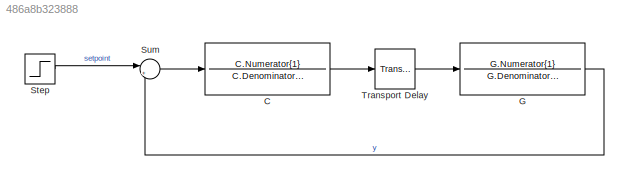
MODEL slx_486a8b323888
KIND model
CONFIG AbsTol = auto
CONFIG EnableMultiTasking = off
CONFIG FixedStep = auto
CONFIG MaxStep = 0.01
CONFIG MinStep = auto
CONFIG RelTol = 1e-3
CONFIG SampleTimeConstraint = Unconstrained
CONFIG SolverName = VariableStepAuto
CONFIG StartTime = 0.0
CONFIG StopTime = 10.0
BLOCK [TransferFcn] C
  Denominator = C.Denominator{1}
  Numerator = C.Numerator{1}
BLOCK [TransferFcn] G
  Denominator = G.Denominator{1}
  Numerator = G.Numerator{1}
BLOCK [Step] Step
  SampleTime = 0
BLOCK [Sum] Sum
  Inputs = |+-
BLOCK [TransportDelay] Transport Delay
  DelayTime = delay
LINE C:1 -> Transport Delay:1
LINE G:1 -> Sum:2
LINE Step:1 -> Sum:1
LINE Sum:1 -> C:1
LINE Transport Delay:1 -> G:1
